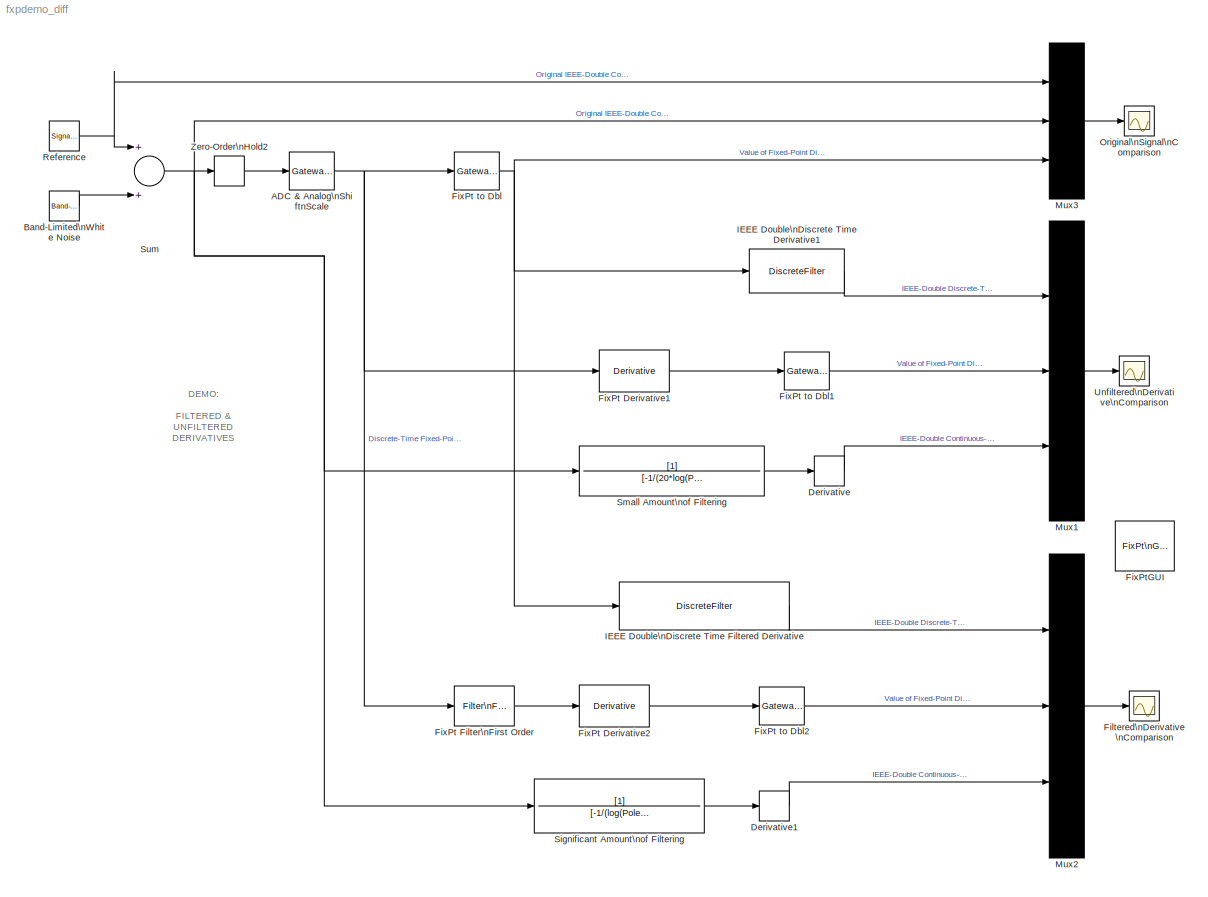
MODEL fxpdemo_diff
KIND model
CONFIG AbsTol = 1e-6
CONFIG FixedStep = SampleTime/5
CONFIG MaxStep = auto
CONFIG MinStep = auto
CONFIG PreLoadFcn = preload_diff
CONFIG RelTol = 1e-3
CONFIG Solver = ode5
CONFIG SolverMode = SingleTasking
CONFIG StartTime = 0.0
CONFIG StopTime = 10
BLOCK [Reference] ADC & Analog\nShiftnScale  REF=fixpt_lib_4/Data Type/Gateway In  (lib defined in mdl_ef9dacb0d1df)
  DoSatur = on
  InRealWorld = Real World Value
  LockScale = on
  OutDataType = sfix(16)
  OutScaling = 2^-9
  OutputDataTypeScalingMode = Specify via dialog
  Ports = [1, 1]
  RndMeth = Nearest
  SourceBlock = fixpt_lib_4/Data Type/Gateway In
  SourceType = Fixed-Point Gateway In
BLOCK [Reference] Band-Limited\nWhite Noise  REF=simulink/Sources/Band-Limited\nWhite Noise
  Cov = [0.0000005]
  Ports = [0, 1]
  SourceBlock = simulink/Sources/Band-Limited\nWhite Noise
  SourceType = Continuous White Noise.
  Ts = SampleTime/5
  VectorParams1D = on
  seed = [23341]
BLOCK [Derivative] Derivative
BLOCK [Derivative] Derivative1
BLOCK [Scope] Filtered\nDerivative\nComparison
  DataFormat = StructureWithTime
  NumInputPorts = 1
  Ports = [1]
  SaveName = FiltDerivCompare
  SaveToWorkspace = on
  TickLabels = on
  YMax = 3
  YMin = -3
BLOCK [Reference] FixPt Derivative1  REF=fixpt_lib_4/Calculus/Derivative  (lib defined in mdl_ef9dacb0d1df)
  DoSatur = off
  ICPrevScaledInput = 0.0
  LockScale = off
  OutDataType = sfix(16)
  OutScaling = 2^-10
  OutputDataTypeScalingMode = Inherit via internal rule
  Ports = [1, 1]
  RndMeth = Floor
  SourceBlock = fixpt_lib_4/Calculus/Derivative
  SourceType = Fixed-Point Derivative
  gainval = 1.0
BLOCK [Reference] FixPt Derivative2  REF=fixpt_lib_4/Calculus/Derivative  (lib defined in mdl_ef9dacb0d1df)
  DoSatur = off
  ICPrevScaledInput = 0.0
  LockScale = off
  OutDataType = sfix(16)
  OutScaling = 2^-10
  OutputDataTypeScalingMode = Inherit via internal rule
  Ports = [1, 1]
  RndMeth = Floor
  SourceBlock = fixpt_lib_4/Calculus/Derivative
  SourceType = Fixed-Point Derivative
  gainval = 1.0
BLOCK [Reference] FixPt Filter\nFirst Order  REF=fixpt_lib_4/Filters/Filter\nFirst Order  (lib defined in mdl_ef9dacb0d1df)
  DoSatur = off
  ICPrevOutput = 0.0
  PoleZ = PoleZ
  Ports = [1, 1]
  RndMeth = Floor
  SourceBlock = fixpt_lib_4/Filters/Filter\nFirst Order
  SourceType = Fixed-Point Filter First Order
BLOCK [Reference] FixPt to Dbl  REF=fixpt_lib_4/Data Type/Gateway Out  (lib defined in mdl_ef9dacb0d1df)
  DoSatur = off
  OutBuiltInType = double
  OutRealWorld = Real World Value
  Ports = [1, 1]
  RndMeth = Floor
  SourceBlock = fixpt_lib_4/Data Type/Gateway Out
  SourceType = Fixed-Point Gateway Out
BLOCK [Reference] FixPt to Dbl1  REF=fixpt_lib_4/Data Type/Gateway Out  (lib defined in mdl_ef9dacb0d1df)
  DoSatur = off
  OutBuiltInType = double
  OutRealWorld = Real World Value
  Ports = [1, 1]
  RndMeth = Floor
  SourceBlock = fixpt_lib_4/Data Type/Gateway Out
  SourceType = Fixed-Point Gateway Out
BLOCK [Reference] FixPt to Dbl2  REF=fixpt_lib_4/Data Type/Gateway Out  (lib defined in mdl_ef9dacb0d1df)
  DoSatur = off
  OutBuiltInType = double
  OutRealWorld = Real World Value
  Ports = [1, 1]
  RndMeth = Floor
  SourceBlock = fixpt_lib_4/Data Type/Gateway Out
  SourceType = Fixed-Point Gateway Out
BLOCK [Reference] FixPtGUI  REF=fixpt_lib_3p1/FixPt\nGUI
  Ports = []
  SourceBlock = fixpt_lib_3p1/FixPt\nGUI
  SourceType = Fixed-Point GUI
BLOCK [DiscreteFilter] IEEE Double\nDiscrete Time Derivative1
  Denominator = SampleTime
  Numerator = [1 -1]
  SampleTime = SampleTime
BLOCK [DiscreteFilter] IEEE Double\nDiscrete Time Filtered Derivative
  Denominator = SampleTime*[1 -PoleZ]
  Numerator = (1-PoleZ)*[1 -1]
  SampleTime = SampleTime
BLOCK [Mux] Mux1
  Inputs = 3
  Ports = [3, 1]
BLOCK [Mux] Mux2
  Inputs = 3
  Ports = [3, 1]
BLOCK [Mux] Mux3
  Inputs = 3
  Ports = [3, 1]
BLOCK [Scope] Original\nSignal\nComparison
  DataFormat = StructureWithTime
  NumInputPorts = 1
  Ports = [1]
  SaveName = OrigSignalCompare
  SaveToWorkspace = on
  TickLabels = on
  YMax = 4
  YMin = -4
BLOCK [SignalGenerator] Reference
  Amplitude = 3
  Frequency = 0.1*1
BLOCK [TransferFcn] Significant Amount\nof Filtering
  Denominator = [-1/(log(PoleZ)/SampleTime) 1]
BLOCK [TransferFcn] Small Amount\nof Filtering
  Denominator = [-1/(20*log(PoleZ)/SampleTime) 1]
BLOCK [Sum] Sum
  Inputs = 2
  Ports = [2, 1]
BLOCK [Scope] Unfiltered\nDerivative\nComparison
  DataFormat = StructureWithTime
  NumInputPorts = 1
  Ports = [1]
  SaveName = UnfiltDerivCompare
  SaveToWorkspace = on
  TickLabels = on
  TimeRange = 10
  YMax = 3
  YMin = -3
BLOCK [ZeroOrderHold] Zero-Order\nHold2
  SampleTime = SampleTime
ANNOTATION (root): DEMO:\n\nFILTERED &\nUNFILTERED\nDERIVATIVES\n\nFixed-Point Realization\nverses\nFloating-Point Realization
NET ADC & Analog\nShiftnScale:1 -> FixPt Derivative1:1, FixPt Filter\nFirst Order:1, FixPt to Dbl:1
LINE Band-Limited\nWhite Noise:1 -> Sum:2
LINE Derivative1:1 -> Mux2:3
LINE Derivative:1 -> Mux1:3
LINE FixPt Derivative1:1 -> FixPt to Dbl1:1
LINE FixPt Derivative2:1 -> FixPt to Dbl2:1
LINE FixPt Filter\nFirst Order:1 -> FixPt Derivative2:1
LINE FixPt to Dbl1:1 -> Mux1:2
LINE FixPt to Dbl2:1 -> Mux2:2
NET FixPt to Dbl:1 -> IEEE Double\nDiscrete Time Derivative1:1, IEEE Double\nDiscrete Time Filtered Derivative:1, Mux3:3
LINE IEEE Double\nDiscrete Time Derivative1:1 -> Mux1:1
LINE IEEE Double\nDiscrete Time Filtered Derivative:1 -> Mux2:1
LINE Mux1:1 -> Unfiltered\nDerivative\nComparison:1
LINE Mux2:1 -> Filtered\nDerivative\nComparison:1
LINE Mux3:1 -> Original\nSignal\nComparison:1
NET Reference:1 -> Mux3:1, Sum:1
LINE Significant Amount\nof Filtering:1 -> Derivative1:1
LINE Small Amount\nof Filtering:1 -> Derivative:1
NET Sum:1 -> Mux3:2, Significant Amount\nof Filtering:1, Small Amount\nof Filtering:1, Zero-Order\nHold2:1
LINE Zero-Order\nHold2:1 -> ADC & Analog\nShiftnScale:1
note: NET lines group one-source signal fan-out (src -> all destinations, sorted); 1:1 wires keep LINE
